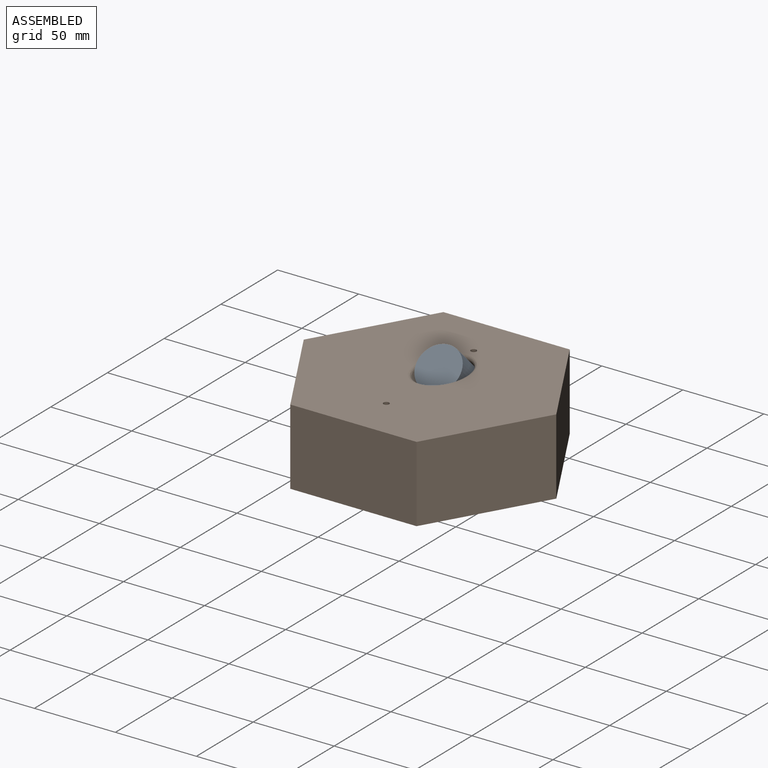
[diagram: assembled view]
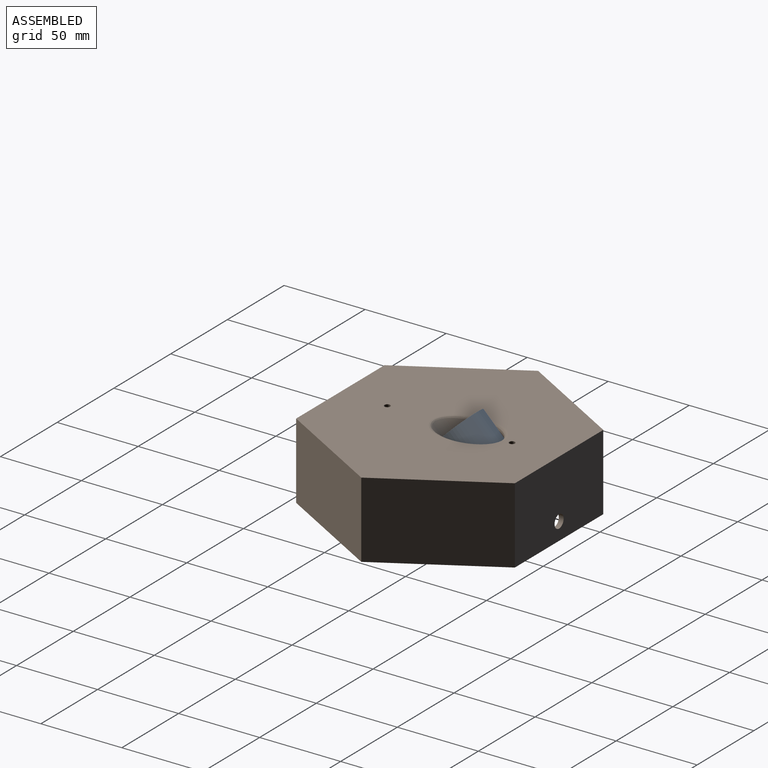
[diagram: assembled view, second angle]
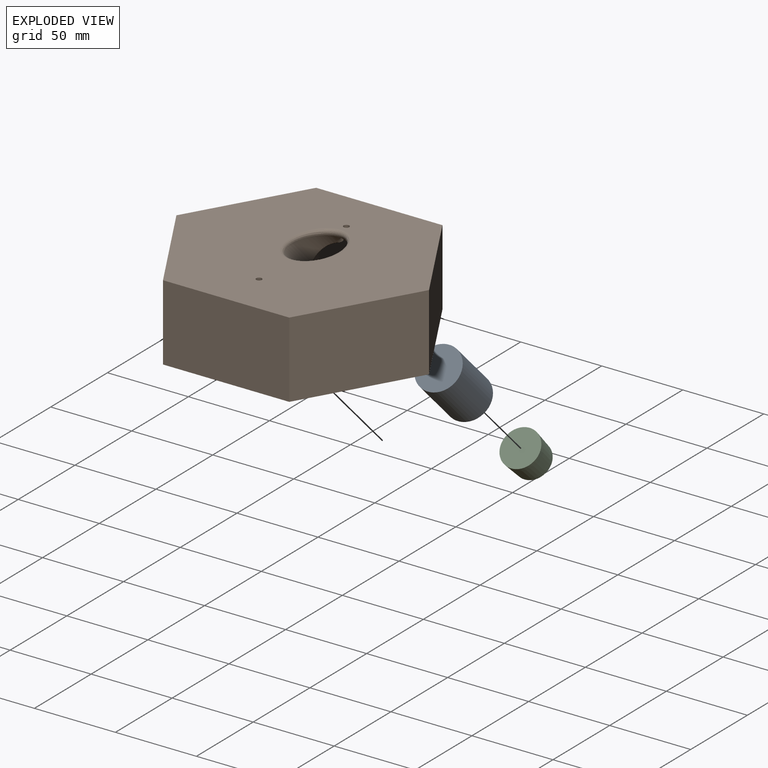
[diagram: exploded view]
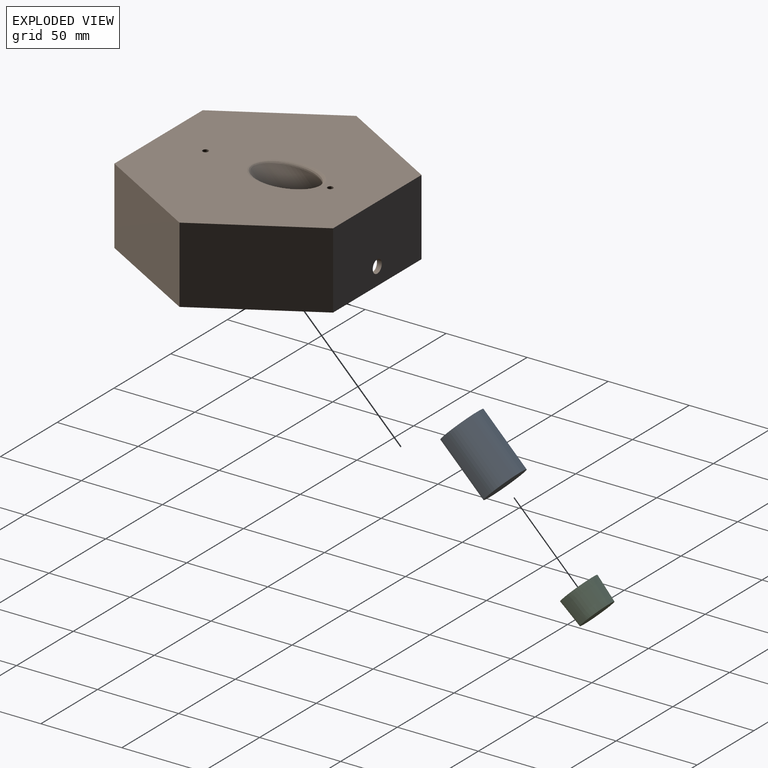
[diagram: exploded view, second angle]
ASSEMBLY  parts=3 mates=2
PART A: 3 faces, bbox 26.8x26.8x37.7 mm
  f0: cylinder r=13.4mm len=37.7mm, axis (0,0,-1), area 3174.1mm2, adj f1,f2
  f1: plane 26.8x26.8mm, normal (0,0,1), area 564.1mm2, adj f0
  f2: plane 26.8x26.8mm, normal (0,0,-1), area 564.1mm2, adj f0
PART B: 260 faces, bbox 155.9x135x66.9 mm
  f0: plane 8.47x0.82mm, normal (0,1,0), area 2.6mm2, adj f233,f234,f236,f237,f240,f241,f244
  f1: plane 68.7x39mm, normal (0,1,0), area 2377.8mm2, adj f5,f37,f40,f43,f45,f46,f47,f48
  f2: plane 155.88x135mm, normal (0,0,1), area 14696.7mm2, adj f6,f7,f8,f9,f10,f11,f20,f21
  f3: plane 137.41x119mm, normal (0,0,-1), area 10804.1mm2, adj f18,f20,f21,f27,f32,f33,f38,f39
  f4: cylinder r=13.5mm len=46.61mm, axis (0,-0.71,0.71), area 1938.7mm2, adj f23,f24,f25
  f5: plane 155.88x135mm, normal (0,0,-1), area 1379.8mm2, adj f1,f6,f7,f8,f9,f10,f11,f12
  f6: plane 77.94x47mm, normal (0,-1,0), area 3663.3mm2, adj f2,f5,f7,f11
  f7: plane 67.5x47mm, normal (0.87,-0.5,0), area 3663.3mm2, adj f2,f5,f6,f8
  f8: plane 67.5x47mm, normal (0.87,0.5,0), area 3663.3mm2, adj f2,f5,f7,f9
  f9: plane 77.94x47mm, normal (0,1,0), area 3613mm2, adj f2,f5,f8,f10,f44
  f10: plane 67.5x47mm, normal (-0.87,0.5,0), area 3663.3mm2, adj f2,f5,f9,f11
  f11: plane 67.5x47mm, normal (-0.87,-0.5,0), area 3663.3mm2, adj f2,f5,f6,f10
  f12: plane 59.5x39mm, normal (-0.87,0.5,0), area 2679.5mm2, adj f5,f31,f37,f38
  f13: plane 59.5x39mm, normal (-0.87,-0.5,0), area 2679.5mm2, adj f5,f26,f31,f32
  f14: plane 68.7x39mm, normal (0,-1,0), area 2629.2mm2, adj f5,f26,f27,f28,f44
  f15: plane 59.5x39mm, normal (0.87,-0.5,0), area 2679.5mm2, adj f5,f28,f33,f34
  f16: plane 59.5x39mm, normal (0.87,0.5,0), area 2679.5mm2, adj f5,f34,f39,f40
  f17: cylinder r=16.5mm len=50.11mm, axis (0,-0.71,0.71), area 2048.9mm2, adj f18,f19,f20,f22
  f18: bspline ~50.69x35.99mm, area 292.9mm2, adj f3,f17,f20
  f19: cone r=1.75mm half-angle=10deg, axis (0,0,-1), area 5.7mm2, adj f17,f20,f22,f23,f24
  f20: cone r=1.75mm half-angle=10deg, axis (0,0,-1), area 56.5mm2, adj f2,f3,f17,f18,f19,f22,f23,f24
  f21: cone r=1.75mm half-angle=10deg, axis (0,0,-1), area 38.6mm2, adj f2,f3
  f22: torus R=14.5mm, axis (0,0.71,-0.71), area 249.6mm2, adj f17,f19,f20,f23
  f23: torus R=15.5mm, axis (0,0.71,-0.71), area 212.1mm2, adj f4,f19,f20,f22,f24
  f24: bspline ~9.31x8.62mm, area 50mm2, adj f4,f19,f20,f23
  f25: bspline ~43.84x31mm, area 346.6mm2, adj f2,f4
  f26: cylinder r=5mm len=39mm, axis (0,0,1), area 204.2mm2, adj f5,f13,f14,f29
  f27: cylinder r=5mm len=68.7mm, axis (-1,0,0), area 539.6mm2, adj f3,f14,f29,f30
  f28: cylinder r=5mm len=39mm, axis (0,0,1), area 204.2mm2, adj f5,f14,f15,f30
  f29: sphere r=5mm, area 30.9mm2, adj f26,f27,f32
  f30: sphere r=5mm, area 26.2mm2, adj f27,f28,f33
  f31: cylinder r=5mm len=39mm, axis (0,0,1), area 204.2mm2, adj f5,f12,f13,f35
  f32: cylinder r=5mm len=62mm, axis (-0.5,0.87,0), area 539.6mm2, adj f3,f13,f29,f35
  f33: cylinder r=5mm len=62mm, axis (-0.5,-0.87,0), area 539.6mm2, adj f3,f15,f30,f36
  f34: cylinder r=5mm len=39mm, axis (0,0,1), area 204.2mm2, adj f5,f15,f16,f36
  f35: sphere r=5mm, area 35.7mm2, adj f31,f32,f38
  f36: sphere r=5mm, area 35.7mm2, adj f33,f34,f39
  f37: cylinder r=5mm len=39mm, axis (0,0,1), area 204.2mm2, adj f1,f5,f12,f41
  f38: cylinder r=5mm len=62mm, axis (0.5,0.87,0), area 539.6mm2, adj f3,f12,f35,f41
  f39: cylinder r=5mm len=62mm, axis (0.5,-0.87,0), area 539.6mm2, adj f3,f16,f36,f42
  f40: cylinder r=5mm len=39mm, axis (0,0,1), area 204.2mm2, adj f1,f5,f16,f42
  f41: sphere r=5mm, area 26.2mm2, adj f37,f38,f43
  f42: sphere r=5mm, area 26.2mm2, adj f39,f40,f43
  f43: cylinder r=5mm len=68.7mm, axis (1,0,0), area 539.6mm2, adj f1,f3,f41,f42
  f44: cylinder r=4mm len=8mm, axis (0,-1,0), area 75.4mm2, adj f9,f14
  f45: plane 1.5x0.4mm, normal (0,0,-1), area 0.6mm2, adj f1,f46,f54,f258
  f46: plane 5.51x0.4mm, normal (-1,0,0), area 2.2mm2, adj f1,f45,f47,f259
  f47: plane 5.35x0.4mm, normal (0,0,-1), area 2.1mm2, adj f1,f46,f48,f257
  f48: plane 1.33x0.4mm, normal (-1,0,0), area 0.5mm2, adj f1,f47,f49,f255
  f49: plane 5.35x0.4mm, normal (0,0,1), area 2.1mm2, adj f1,f48,f50,f253
  f50: plane 4.72x0.4mm, normal (-1,0,0), area 1.9mm2, adj f1,f49,f51,f251
  f51: plane 5.69x0.4mm, normal (0,0,-1), area 2.3mm2, adj f1,f50,f52,f250
  f52: plane 1.33x0.4mm, normal (-1,0,0), area 0.5mm2, adj f1,f51,f53,f252
  f53: plane 7.19x0.4mm, normal (0,0,1), area 2.9mm2, adj f1,f52,f54,f254
  f54: plane 12.9x0.4mm, normal (1,0,0), area 5.2mm2, adj f1,f45,f53,f256
  f55: plane 11.7x5.99mm, normal (0,1,0), area 5mm2, adj f250,f251,f252,f253,f254,f255,f256,f257
  f56: plane 6.26x0.4mm, normal (1,0,0), area 2.5mm2, adj f1,f57,f72,f243
  f57: plane 1.47x0.4mm, normal (0,0,-1), area 0.6mm2, adj f1,f56,f58,f239
  f58: plane 6.31x0.4mm, normal (-1,0,0), area 2.5mm2, adj f1,f57,f59,f235
  f59: extruded ~2.7x0.88mm, area 1.2mm2, adj f1,f58,f60,f238
  f60: extruded ~2.63x0.84mm, area 1.1mm2, adj f1,f59,f61,f242
  f61: extruded ~1.81x0.4mm, area 0.7mm2, adj f1,f60,f62,f246
  f62: extruded ~1.26x1.11mm, area 0.7mm2, adj f1,f61,f63,f245
  f63: plane 0.4x0.07mm, normal (0,0,1), area 0mm2, adj f1,f62,f64,f241
  f64: plane 1.32x0.4mm, normal (-0.98,0,0.18), area 0.5mm2, adj f1,f63,f65,f237
  f65: plane 1.19x0.4mm, normal (0,0,1), area 0.5mm2, adj f1,f64,f66,f234
  f66: plane 9.67x0.4mm, normal (1,0,0), area 3.9mm2, adj f1,f65,f67,f233
  f67: plane 1.47x0.4mm, normal (0,0,-1), area 0.6mm2, adj f1,f66,f68,f236
  f68: plane 5.07x0.4mm, normal (-1,0,0), area 2mm2, adj f1,f67,f69,f240
  f69: extruded ~2.71x0.71mm, area 1.1mm2, adj f1,f68,f70,f244
  f70: extruded ~2.22x0.82mm, area 1mm2, adj f1,f69,f71,f248
  f71: extruded ~1.69x0.58mm, area 0.7mm2, adj f1,f70,f72,f249
  f72: extruded ~1.76x0.54mm, area 0.8mm2, adj f1,f56,f71,f247
  f73: plane 8.65x3.71mm, normal (0,1,0), area 2.6mm2, adj f235,f238,f239,f242,f243,f246,f247,f248
  f74: plane 1.5x0.4mm, normal (0,0,-1), area 0.6mm2, adj f1,f75,f83,f231
  f75: plane 5.51x0.4mm, normal (-1,0,0), area 2.2mm2, adj f1,f74,f76,f232
  f76: plane 5.35x0.4mm, normal (0,0,-1), area 2.1mm2, adj f1,f75,f77,f230
  f77: plane 1.33x0.4mm, normal (-1,0,0), area 0.5mm2, adj f1,f76,f78,f228
  f78: plane 5.35x0.4mm, normal (0,0,1), area 2.1mm2, adj f1,f77,f79,f226
  f79: plane 4.72x0.4mm, normal (-1,0,0), area 1.9mm2, adj f1,f78,f80,f224
  f80: plane 5.69x0.4mm, normal (0,0,-1), area 2.3mm2, adj f1,f79,f81,f223
  f81: plane 1.33x0.4mm, normal (-1,0,0), area 0.5mm2, adj f1,f80,f82,f225
  f82: plane 7.19x0.4mm, normal (0,0,1), area 2.9mm2, adj f1,f81,f83,f227
  f83: plane 12.9x0.4mm, normal (1,0,0), area 5.2mm2, adj f1,f74,f82,f229
  f84: plane 11.7x5.99mm, normal (0,1,0), area 5mm2, adj f223,f224,f225,f226,f227,f228,f229,f230
  f85: extruded ~3.8x1.27mm, area 1.6mm2, adj f86,f98,f100,f188
  f86: extruded ~3.9x1.35mm, area 1.7mm2, adj f85,f87,f100,f189
  f87: extruded ~4.03x1.32mm, area 1.7mm2, adj f86,f88,f100,f187
  f88: plane 1.83x0.4mm, normal (0,0,1), area 0.7mm2, adj f87,f89,f100,f185
  f89: plane 10.31x0.4mm, normal (-1,0,0), area 4.1mm2, adj f88,f90,f100,f183
  f90: plane 2.18x0.4mm, normal (0,0,-1), area 0.9mm2, adj f89,f98,f100,f184
  f91: extruded ~4.88x1.73mm, area 2.1mm2, adj f1,f92,f97,f181
  f92: extruded ~4.66x1.67mm, area 2mm2, adj f1,f91,f93,f182
  f93: extruded ~4.68x1.67mm, area 2mm2, adj f1,f92,f94,f180
  f94: plane 3.95x0.4mm, normal (0,0,1), area 1.6mm2, adj f1,f93,f95,f178
  f95: plane 12.9x0.4mm, normal (1,0,0), area 5.2mm2, adj f1,f94,f96,f176
  f96: plane 3.57x0.4mm, normal (0,0,-1), area 1.4mm2, adj f1,f95,f97,f177
  f97: extruded ~4.99x1.69mm, area 2.2mm2, adj f1,f91,f96,f179
  f98: extruded ~3.76x1.28mm, area 1.6mm2, adj f85,f90,f100,f186
  f99: plane 11.7x9.1mm, normal (0,1,0), area 9.2mm2, adj f176,f177,f178,f179,f180,f181,f182,f183
  f100: plane 10.31x7.21mm, normal (0,1,0), area 65.3mm2, adj f85,f86,f87,f88,f89,f90,f98
  f101: extruded ~0.9x0.4mm, area 0.4mm2, adj f1,f102,f108,f221
  f102: extruded ~0.91x0.4mm, area 0.4mm2, adj f1,f101,f103,f222
  f103: extruded ~0.75x0.4mm, area 0.3mm2, adj f1,f102,f104,f220
  f104: extruded ~0.79x0.4mm, area 0.4mm2, adj f1,f103,f105,f218
  f105: extruded ~0.88x0.4mm, area 0.4mm2, adj f1,f104,f106,f216
  f106: extruded ~0.9x0.4mm, area 0.4mm2, adj f1,f105,f107,f215
  f107: extruded ~0.8x0.4mm, area 0.4mm2, adj f1,f106,f108,f217
  f108: extruded ~0.77x0.4mm, area 0.3mm2, adj f1,f101,f107,f219
  f109: plane 1.19x0.93mm, normal (0,1,0), area 0.9mm2, adj f215,f216,f217,f218,f219,f220,f221,f222
  f110: extruded ~2.08x1.01mm, area 1mm2, adj f1,f111,f134,f213
  f111: extruded ~1.6x0.6mm, area 0.7mm2, adj f1,f110,f112,f214
  f112: extruded ~2.32x1.26mm, area 1.1mm2, adj f1,f111,f113,f212
  f113: extruded ~1.69x0.72mm, area 0.7mm2, adj f1,f112,f114,f210
  f114: extruded ~0.64x0.52mm, area 0.3mm2, adj f1,f113,f115,f208
  f115: extruded ~0.66x0.4mm, area 0.3mm2, adj f1,f114,f116,f206
  f116: extruded ~0.9x0.53mm, area 0.4mm2, adj f1,f115,f117,f204
  f117: extruded ~1.57x0.4mm, area 0.6mm2, adj f1,f116,f118,f202
  f118: extruded ~2.64x0.6mm, area 1.1mm2, adj f1,f117,f119,f200
  f119: plane 1.19x0.52mm, normal (-0.92,0,-0.4), area 0.5mm2, adj f1,f118,f120,f198
  f120: extruded ~3.05x0.64mm, area 1.3mm2, adj f1,f119,f121,f196
  f121: extruded ~2.64x0.68mm, area 1.1mm2, adj f1,f120,f122,f194
  f122: extruded ~1.87x0.96mm, area 0.9mm2, adj f1,f121,f123,f192
  f123: extruded ~1.14x0.4mm, area 0.5mm2, adj f1,f122,f124,f190
  f124: extruded ~0.85x0.85mm, area 0.5mm2, adj f1,f123,f125,f191
  f125: extruded ~1.92x0.88mm, area 0.8mm2, adj f1,f124,f126,f193
  f126: extruded ~1.91x0.95mm, area 0.9mm2, adj f1,f125,f127,f195
  f127: extruded ~0.97x0.49mm, area 0.4mm2, adj f1,f126,f128,f197
  f128: extruded ~1.12x0.62mm, area 0.5mm2, adj f1,f127,f129,f199
  f129: extruded ~1.76x0.4mm, area 0.7mm2, adj f1,f128,f130,f201
  f130: extruded ~1.54x0.4mm, area 0.6mm2, adj f1,f129,f131,f203
  f131: extruded ~1.5x0.55mm, area 0.6mm2, adj f1,f130,f132,f205
  f132: plane 1.36x0.4mm, normal (1,0,0), area 0.5mm2, adj f1,f131,f133,f207
  f133: extruded ~3x0.61mm, area 1.2mm2, adj f1,f132,f134,f209
  f134: extruded ~2.82x0.73mm, area 1.2mm2, adj f1,f110,f133,f211
  f135: plane 8.83x5.66mm, normal (0,1,0), area 2.3mm2, adj f190,f191,f192,f193,f194,f195,f196,f197
  f136: extruded ~1.86x0.76mm, area 0.8mm2, adj f137,f154,f156,f157
  f137: extruded ~1.77x0.74mm, area 0.8mm2, adj f136,f138,f156,f158
  f138: extruded ~2.12x0.62mm, area 0.9mm2, adj f137,f139,f156,f160
  f139: plane 5.06x0.4mm, normal (0,0,1), area 2mm2, adj f138,f154,f156,f162
  f140: extruded ~3.38x1.31mm, area 1.5mm2, adj f1,f141,f153,f174
  f141: extruded ~1.67x0.4mm, area 0.7mm2, adj f1,f140,f142,f175
  f142: extruded ~1.47x0.48mm, area 0.6mm2, adj f1,f141,f143,f173
  f143: plane 1.31x0.4mm, normal (-1,0,0), area 0.5mm2, adj f1,f142,f144,f171
  f144: extruded ~3.09x0.65mm, area 1.3mm2, adj f1,f143,f145,f169
  f145: extruded ~2.3x0.88mm, area 1mm2, adj f1,f144,f146,f167
  f146: extruded ~2.58x0.86mm, area 1.1mm2, adj f1,f145,f147,f165
  f147: plane 6.66x0.4mm, normal (0,0,-1), area 2.7mm2, adj f1,f146,f148,f163
  f148: plane 0.93x0.4mm, normal (-1,0,0), area 0.4mm2, adj f1,f147,f149,f161
  f149: extruded ~3.16x1.06mm, area 1.4mm2, adj f1,f148,f150,f164
  f150: extruded ~2.87x1.2mm, area 1.3mm2, adj f1,f149,f151,f166
  f151: extruded ~3.09x1.38mm, area 1.4mm2, adj f1,f150,f152,f168
  f152: extruded ~3.72x1.15mm, area 1.6mm2, adj f1,f151,f153,f170
  f153: extruded ~3.63x1.24mm, area 1.6mm2, adj f1,f140,f152,f172
  f154: extruded ~2.1x0.82mm, area 0.9mm2, adj f136,f139,f156,f159
  f155: plane 8.83x6.98mm, normal (0,1,0), area 3.8mm2, adj f157,f158,f159,f160,f161,f162,f163,f164
  f156: plane 5.06x2.86mm, normal (0,1,0), area 11.6mm2, adj f136,f137,f138,f139,f154
  f157: bspline ~2.96x1.45mm, area 2.1mm2, adj f136,f155,f158,f159
  f158: bspline ~2.79x1.42mm, area 2mm2, adj f137,f155,f157,f160
  f159: bspline ~4.5x1.96mm, area 2.6mm2, adj f154,f155,f157,f162
  f160: bspline ~6.48x1.56mm, area 2.5mm2, adj f138,f155,f158,f162,f163
  f161: cylinder r=0.6mm len=0.93mm, axis (0,0,-1), area 0.6mm2, adj f148,f155,f163,f164
  f162: cylinder r=0.6mm len=6.31mm, axis (-1,0,0), area 5.2mm2, adj f139,f155,f159,f160,f163,f165
  f163: cylinder r=0.6mm len=7.27mm, axis (1,0,0), area 6.3mm2, adj f147,f155,f160,f161,f162,f165
  f164: bspline ~4.92x1.93mm, area 3.1mm2, adj f149,f155,f161,f166
  f165: bspline ~7.47x2.01mm, area 3mm2, adj f146,f155,f162,f163,f167
  f166: bspline ~4.47x2.31mm, area 2.9mm2, adj f150,f155,f164,f168
  f167: bspline ~3.44x2.03mm, area 2.6mm2, adj f145,f155,f165,f169
  f168: bspline ~4.75x2.54mm, area 3.1mm2, adj f151,f155,f166,f170
  f169: bspline ~4.62x1.55mm, area 2.7mm2, adj f144,f155,f167,f171
  f170: bspline ~5.15x2.13mm, area 3.6mm2, adj f152,f155,f168,f172
  f171: cylinder r=0.6mm len=1.31mm, axis (0,0,-1), area 0.8mm2, adj f143,f155,f169,f173
  f172: bspline ~5.2x1.8mm, area 3.5mm2, adj f153,f155,f170,f174
  f173: bspline ~2.11x1.19mm, area 1.2mm2, adj f142,f155,f171,f175
  f174: bspline ~5.02x2.16mm, area 3.4mm2, adj f140,f155,f172,f175
  f175: bspline ~2.36x0.81mm, area 1.5mm2, adj f141,f155,f173,f174
  f176: cylinder r=0.6mm len=12.9mm, axis (0,0,1), area 11.6mm2, adj f95,f99,f177,f178
  f177: cylinder r=0.6mm len=3.57mm, axis (1,0,0), area 3.1mm2, adj f96,f99,f176,f179
  f178: cylinder r=0.6mm len=3.95mm, axis (-1,0,0), area 3.4mm2, adj f94,f99,f176,f180
  f179: bspline ~7.72x2.82mm, area 4.9mm2, adj f97,f99,f177,f181
  f180: bspline ~5.8x2.74mm, area 4.6mm2, adj f93,f99,f178,f182
  f181: bspline ~7.44x2.83mm, area 4.9mm2, adj f91,f99,f179,f182
  f182: bspline ~7.13x2.74mm, area 4.6mm2, adj f92,f99,f180,f181
  f183: cylinder r=0.6mm len=11.51mm, axis (0,0,-1), area 10.3mm2, adj f89,f99,f184,f185
  f184: cylinder r=0.6mm len=2.78mm, axis (1,0,0), area 2.3mm2, adj f90,f99,f183,f186
  f185: cylinder r=0.6mm len=2.43mm, axis (-1,0,0), area 2mm2, adj f88,f99,f183,f187
  f186: bspline ~6.14x2.39mm, area 4mm2, adj f98,f99,f184,f188
  f187: bspline ~6.62x2.48mm, area 4.3mm2, adj f87,f99,f185,f189
  f188: bspline ~6.23x2.39mm, area 4mm2, adj f85,f99,f186,f189
  f189: bspline ~6.33x2.48mm, area 4.2mm2, adj f86,f99,f187,f188
  f190: bspline ~1.63x0.93mm, area 1mm2, adj f123,f135,f191,f192
  f191: bspline ~1.55x1.55mm, area 1mm2, adj f124,f135,f190,f193
  f192: bspline ~2.62x1.7mm, area 1.9mm2, adj f122,f135,f190,f194
  f193: bspline ~2.68x1.66mm, area 1.9mm2, adj f125,f135,f191,f195
  f194: bspline ~3.79x1.54mm, area 2.5mm2, adj f121,f135,f192,f196
  f195: bspline ~3.19x1.97mm, area 2.1mm2, adj f126,f135,f193,f197
  f196: bspline ~3.86x1.28mm, area 2.6mm2, adj f120,f135,f194,f198
  f197: bspline ~1.8x1.14mm, area 1.2mm2, adj f127,f135,f195,f199
  f198: cylinder r=0.6mm len=1.43mm, axis (0.4,0,-0.92), area 0.8mm2, adj f119,f135,f196,f200
  f199: bspline ~1.91x1.53mm, area 1.5mm2, adj f128,f135,f197,f201
  f200: bspline ~3.6x1.27mm, area 2.4mm2, adj f118,f135,f198,f202
  f201: bspline ~2.61x1.02mm, area 1.8mm2, adj f129,f135,f199,f203
  f202: bspline ~2.64x1.14mm, area 1.6mm2, adj f117,f135,f200,f204
  f203: bspline ~2.28x0.88mm, area 1.5mm2, adj f130,f135,f201,f205
  f204: bspline ~1.65x1.39mm, area 1.2mm2, adj f116,f135,f202,f206
  f205: bspline ~2.37x1.37mm, area 1.1mm2, adj f131,f135,f203,f207
  f206: bspline ~1.26x0.82mm, area 0.8mm2, adj f115,f135,f204,f208
  f207: cylinder r=0.6mm len=1.36mm, axis (0,0,1), area 0.8mm2, adj f132,f135,f205,f209
  f208: bspline ~1.3x1.25mm, area 0.9mm2, adj f114,f135,f206,f210
  f209: bspline ~3.84x1.21mm, area 2.6mm2, adj f133,f135,f207,f211
  f210: bspline ~2.82x1.64mm, area 1.8mm2, adj f113,f135,f208,f212
  f211: bspline ~4.05x1.62mm, area 2.7mm2, adj f134,f135,f209,f213
  f212: bspline ~3.56x2.25mm, area 2.4mm2, adj f112,f135,f210,f214
  f213: bspline ~2.97x1.81mm, area 2.1mm2, adj f110,f135,f211,f214
  f214: bspline ~2.49x1.39mm, area 1.5mm2, adj f111,f135,f212,f213
  f215: bspline ~1.34x0.84mm, area 0.8mm2, adj f106,f109,f216,f217
  f216: bspline ~1.36x0.87mm, area 0.7mm2, adj f105,f109,f215,f218
  f217: bspline ~1.19x0.88mm, area 0.7mm2, adj f107,f109,f215,f219
  f218: bspline ~1.04x0.91mm, area 0.7mm2, adj f104,f109,f216,f220
  f219: bspline ~1.11x0.84mm, area 0.6mm2, adj f108,f109,f217,f221
  f220: bspline ~1.08x0.74mm, area 0.6mm2, adj f103,f109,f218,f222
  f221: bspline ~1.3x0.74mm, area 0.8mm2, adj f101,f109,f219,f222
  f222: bspline ~1.06x0.76mm, area 0.8mm2, adj f102,f109,f220,f221
  f223: cylinder r=0.6mm len=6.29mm, axis (1,0,0), area 5.4mm2, adj f80,f84,f224,f225
  f224: cylinder r=0.6mm len=5.92mm, axis (0,0,-1), area 5mm2, adj f79,f84,f223,f226
  f225: cylinder r=0.6mm len=1.33mm, axis (0,0,-1), area 0.8mm2, adj f81,f84,f223,f227
  f226: cylinder r=0.6mm len=5.95mm, axis (-1,0,0), area 5mm2, adj f78,f84,f224,f228
  f227: cylinder r=0.6mm len=7.19mm, axis (-1,0,0), area 6.2mm2, adj f82,f84,f225,f229
  f228: cylinder r=0.6mm len=1.33mm, axis (0,0,-1), area 0.8mm2, adj f77,f84,f226,f230
  f229: cylinder r=0.6mm len=12.9mm, axis (0,0,1), area 11.6mm2, adj f83,f84,f227,f231
  f230: cylinder r=0.6mm len=5.95mm, axis (1,0,0), area 5mm2, adj f76,f84,f228,f232
  f231: cylinder r=0.6mm len=1.5mm, axis (1,0,0), area 0.8mm2, adj f74,f84,f229,f232
  f232: cylinder r=0.6mm len=6.11mm, axis (0,0,-1), area 5.2mm2, adj f75,f84,f230,f231
  f233: cylinder r=0.6mm len=9.67mm, axis (0,0,1), area 8.5mm2, adj f0,f66,f234,f236
  f234: cylinder r=0.6mm len=1.19mm, axis (-1,0,0), area 0.7mm2, adj f0,f65,f233,f237
  f235: cylinder r=0.6mm len=6.31mm, axis (0,0,-1), area 5.7mm2, adj f58,f73,f238,f239
  f236: cylinder r=0.6mm len=1.47mm, axis (1,0,0), area 0.8mm2, adj f0,f67,f233,f240
  f237: cylinder r=0.6mm len=1.92mm, axis (-0.18,0,-0.98), area 1.3mm2, adj f0,f64,f234,f241
  f238: bspline ~4x1.65mm, area 2.6mm2, adj f59,f73,f235,f242
  f239: cylinder r=0.6mm len=1.47mm, axis (1,0,0), area 0.8mm2, adj f57,f73,f235,f243
  f240: cylinder r=0.6mm len=5.07mm, axis (0,0,-1), area 4.5mm2, adj f0,f68,f236,f244
  f241: cylinder r=0.6mm len=0.81mm, axis (-1,0,0), area 0.3mm2, adj f0,f63,f237,f244,f245
  f242: bspline ~3.98x1.62mm, area 2.5mm2, adj f60,f73,f238,f246
  f243: cylinder r=0.6mm len=6.26mm, axis (0,0,1), area 5.6mm2, adj f56,f73,f239,f247
  f244: bspline ~3.84x1.69mm, area 2.8mm2, adj f0,f69,f240,f241,f245,f248
  f245: bspline ~1.84x1.82mm, area 1.4mm2, adj f62,f241,f244,f246,f248
  f246: bspline ~2.53x1.1mm, area 1.6mm2, adj f61,f73,f242,f245,f248
  f247: bspline ~3.02x1.35mm, area 1.9mm2, adj f72,f73,f243,f249
  f248: bspline ~3.82x1.94mm, area 2.3mm2, adj f70,f73,f244,f245,f246,f249
  f249: bspline ~2.98x1.56mm, area 1.9mm2, adj f71,f73,f247,f248
  f250: cylinder r=0.6mm len=6.29mm, axis (1,0,0), area 5.4mm2, adj f51,f55,f251,f252
  f251: cylinder r=0.6mm len=5.92mm, axis (0,0,-1), area 5mm2, adj f50,f55,f250,f253
  f252: cylinder r=0.6mm len=1.33mm, axis (0,0,-1), area 0.8mm2, adj f52,f55,f250,f254
  f253: cylinder r=0.6mm len=5.95mm, axis (-1,0,0), area 5mm2, adj f49,f55,f251,f255
  f254: cylinder r=0.6mm len=7.19mm, axis (-1,0,0), area 6.2mm2, adj f53,f55,f252,f256
  f255: cylinder r=0.6mm len=1.33mm, axis (0,0,-1), area 0.8mm2, adj f48,f55,f253,f257
  f256: cylinder r=0.6mm len=12.9mm, axis (0,0,1), area 11.6mm2, adj f54,f55,f254,f258
  f257: cylinder r=0.6mm len=5.95mm, axis (1,0,0), area 5mm2, adj f47,f55,f255,f259
  f258: cylinder r=0.6mm len=1.5mm, axis (1,0,0), area 0.8mm2, adj f45,f55,f256,f259
  f259: cylinder r=0.6mm len=6.11mm, axis (0,0,-1), area 5.2mm2, adj f46,f55,f257,f258
PART C: 3 faces, bbox 23.2x23.2x16 mm
  f0: cone r=11.6mm half-angle=3deg, axis (0,0,-1), area 1125.6mm2, adj f1,f2
  f1: plane 21.52x21.52mm, normal (0,0,1), area 363.8mm2, adj f0
  f2: plane 23.2x23.2mm, normal (0,0,-1), area 422.7mm2, adj f0
PLACE A rot(axis=(1,0,0),45deg) t=(27.84,11.49,15.36)mm
PLACE B t=(0,-22.69,-7.04)mm
PLACE C rot(axis=(-1,0,0),135deg) t=(-27.3,11.49,15.36)mm
MATE fastened A.f0 <-> B.f22  axis (0,0.71,-0.71) through (0,-15.17,42.02)mm
MATE fastened C.f0 <-> A.f0  axis (0,-0.71,0.71) through (0,11.49,15.36)mm
